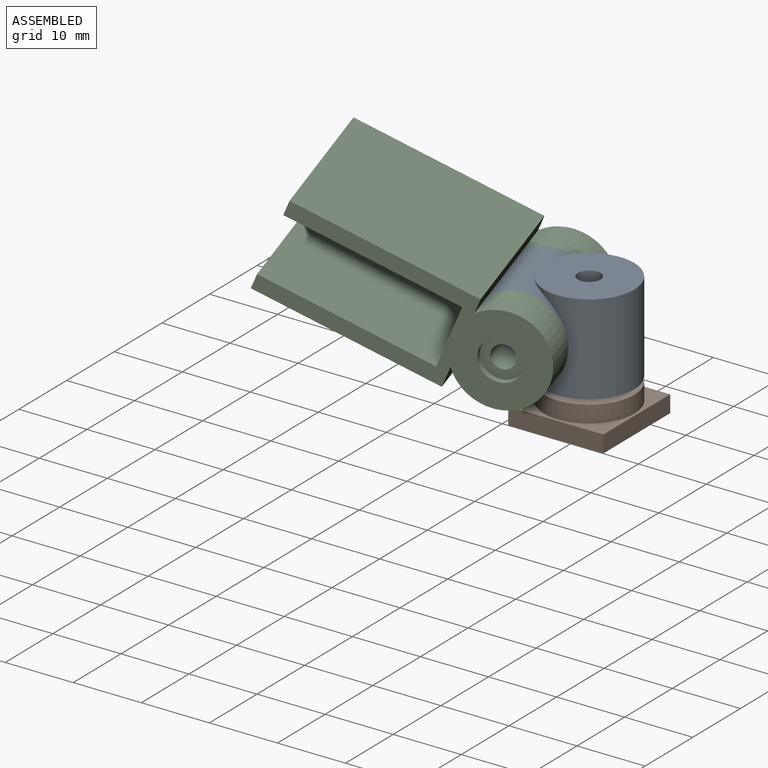
[diagram: assembled view]
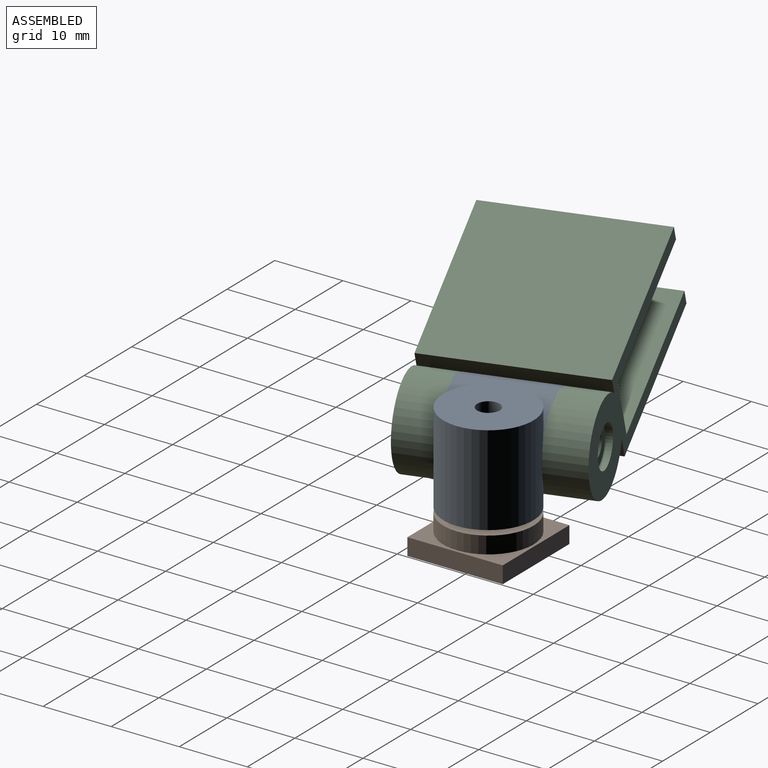
[diagram: assembled view, second angle]
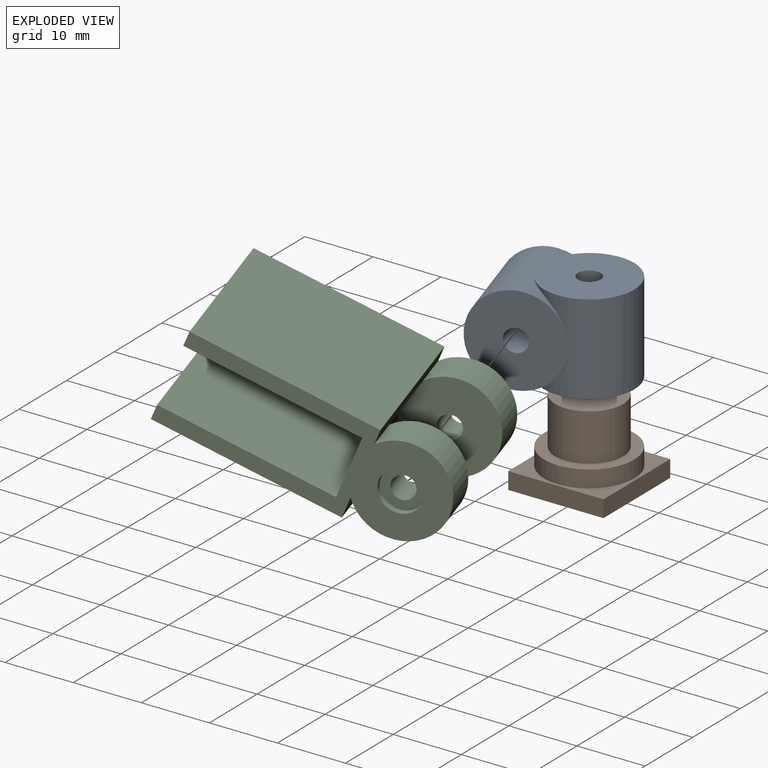
[diagram: exploded view]
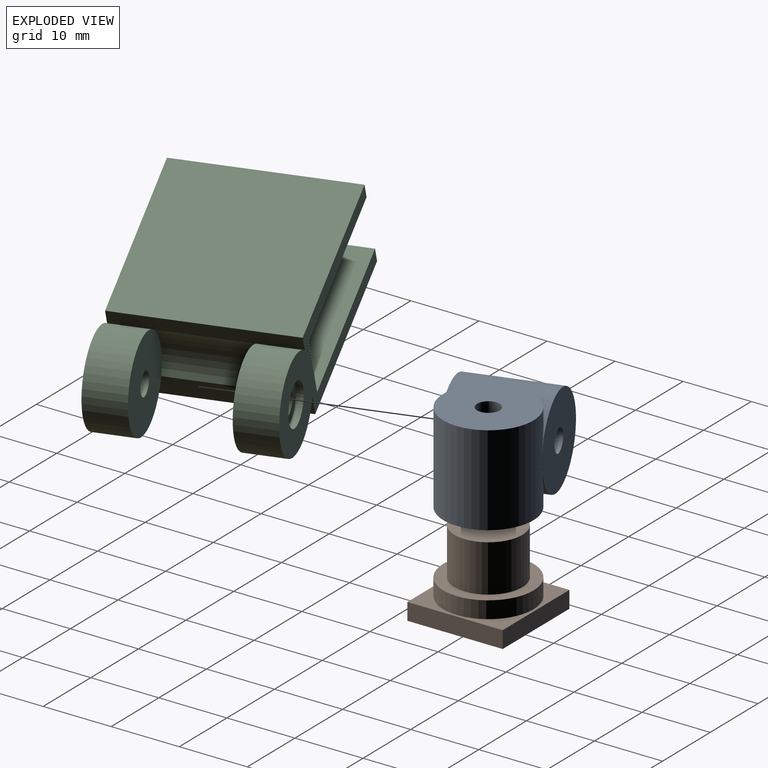
[diagram: exploded view, second angle]
ASSEMBLY  parts=3 mates=2
PART A: 10 faces, bbox 20.4x13.3x13.3 mm
  f0: cylinder r=1.67mm len=7.03mm, axis (0,0,1), area 73.5mm2, adj f3,f8
  f1: cylinder r=6.62mm len=13.25mm, axis (0,0,-1), area 330mm2, adj f2,f3,f4
  f2: plane 13.25x13.25mm, normal (0,0,1), area 57.8mm2, adj f1,f9
  f3: plane 13.25x13.25mm, normal (0,0,-1), area 129.2mm2, adj f0,f1
  f4: cylinder r=6.62mm len=13.25mm, axis (0,1,0), area 330.3mm2, adj f1,f5,f6
  f5: plane 13.25x13.25mm, normal (0,-1,0), area 129.2mm2, adj f4,f7
  f6: plane 13.25x13.25mm, normal (0,1,0), area 129.2mm2, adj f4,f7
  f7: cylinder r=1.67mm len=13.25mm, axis (0,-1,0), area 138.6mm2, adj f5,f6
  f8: plane 10.1x10.1mm, normal (0,0,1), area 71.4mm2, adj f0,f9
  f9: cylinder r=5.05mm len=10.1mm, axis (0,0,1), area 197.5mm2, adj f2,f8
PART B: 11 faces, bbox 14x14x12 mm
  f0: plane 14x2.5mm, normal (0,-1,0), area 35mm2, adj f1,f3,f4,f5
  f1: plane 14x2.5mm, normal (1,0,0), area 35mm2, adj f0,f2,f4,f5
  f2: plane 14x2.5mm, normal (0,1,0), area 35mm2, adj f1,f3,f4,f5
  f3: plane 14x2.5mm, normal (-1,0,0), area 35mm2, adj f0,f2,f4,f5
  f4: plane 14x14mm, normal (0,0,1), area 58.1mm2, adj f0,f1,f2,f3,f6
  f5: plane 14x14mm, normal (0,0,-1), area 188.2mm2, adj f0,f1,f2,f3,f10
  f6: cylinder r=6.62mm len=13.25mm, axis (0,0,1), area 104.1mm2, adj f4,f7
  f7: plane 13.25x13.25mm, normal (0,0,1), area 59.3mm2, adj f6,f8
  f8: cylinder r=5mm len=10mm, axis (0,0,-1), area 218.3mm2, adj f7,f9
  f9: plane 10x10mm, normal (0,0,1), area 70.7mm2, adj f8,f10
  f10: cylinder r=1.57mm len=11.95mm, axis (0,0,-1), area 118.3mm2, adj f5,f9
PART C: 22 faces, bbox 37.9x25x13.7 mm
  f0: cylinder r=1.67mm len=4.88mm, axis (0,1,0), area 51mm2, adj f16,f21
  f1: cylinder r=1.67mm len=4.88mm, axis (0,1,0), area 51mm2, adj f17,f19
  f2: cylinder r=6.62mm len=13.25mm, axis (0,1,0), area 193.5mm2, adj f8,f10,f14,f16
  f3: plane 25x24.37mm, normal (0,0,-1), area 609.2mm2, adj f4,f12,f13,f14
  f4: plane 25x8.95mm, normal (-1,0,0), area 223.8mm2, adj f3,f5,f13,f14
  f5: plane 25x24.37mm, normal (0,0,1), area 609.2mm2, adj f4,f6,f13,f14
  f6: plane 25x2.15mm, normal (-1,0,0), area 53.8mm2, adj f5,f7,f13,f14
  f7: plane 26x25mm, normal (0,0,-1), area 650mm2, adj f6,f8,f13,f14
  f8: plane 25x3.01mm, normal (1,0,0), area 75.2mm2, adj f2,f7,f9,f13,f14,f15
  f9: cylinder r=6.62mm len=13.25mm, axis (0,1,0), area 193.5mm2, adj f8,f10,f13,f17
  f10: plane 25x2.16mm, normal (1,0,0), area 54mm2, adj f2,f9,f11,f13,f14,f15
  f11: plane 26x25mm, normal (0,0,1), area 650mm2, adj f10,f12,f13,f14
  f12: plane 25x2.15mm, normal (-1,0,0), area 53.8mm2, adj f3,f11,f13,f14
  f13: plane 37.88x13.67mm, normal (0,-1,0), area 228.5mm2, adj f3,f4,f5,f6,f7,f8,f9,f10
  f14: plane 37.88x13.67mm, normal (0,1,0), area 228.5mm2, adj f2,f3,f4,f5,f6,f7,f8,f10
  f15: cylinder r=6.62mm len=13.25mm, axis (0,-1,0), area 115.2mm2, adj f8,f10,f16,f17
  f16: plane 13.25x13.25mm, normal (0,-1,0), area 129.2mm2, adj f0,f2,f15
  f17: plane 13.25x13.25mm, normal (0,1,0), area 129.2mm2, adj f1,f9,f15
  f18: cylinder r=3mm len=6mm, axis (0,-1,0), area 18.8mm2, adj f13,f19
  f19: plane 6x6mm, normal (0,-1,0), area 19.6mm2, adj f1,f18
  f20: cylinder r=3mm len=6mm, axis (0,1,0), area 18.8mm2, adj f14,f21
  f21: plane 6x6mm, normal (0,1,0), area 19.6mm2, adj f0,f20
PLACE A rot(axis=(0.99,0.15,0),180deg) t=(-7.15,-1.91,10.41)mm
PLACE B t=(-0.34,0.18,-1.94)mm fixed
PLACE C rot(axis=(-0.12,0.78,0.61),27.5deg) t=(-7.15,-1.91,10.41)mm
MATE revolute A.f0 <-> B.f8  axis (0,0,-1) through (-0.34,0.18,10.01)mm
MATE revolute A.f4 <-> C.f0  axis (0.29,-0.96,0) through (-5.2,-8.24,10.41)mm
